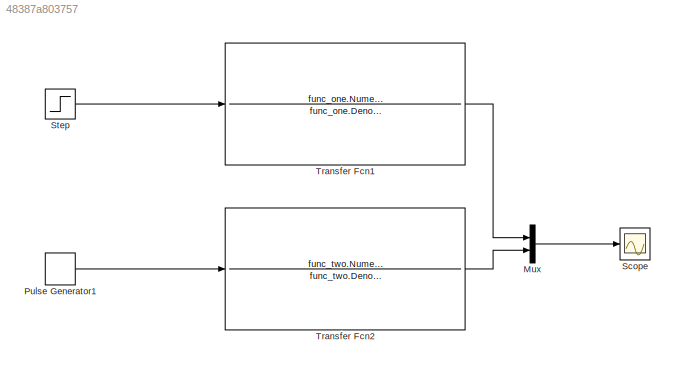
MODEL slx_48387a803757
KIND model
CONFIG AbsTol = auto
CONFIG EnableMultiTasking = off
CONFIG FixedStep = auto
CONFIG MaxStep = auto
CONFIG MinStep = auto
CONFIG RelTol = 1e-3
CONFIG SampleTimeConstraint = Unconstrained
CONFIG Solver = VariableStepAuto
CONFIG SolverName = VariableStepAuto
CONFIG StartTime = 0.0
CONFIG StopTime = 100
BLOCK [Mux] Mux
  DisplayOption = bar
  Inputs = 2
  Ports = [2, 1]
BLOCK [DiscretePulseGenerator] Pulse Generator1
  Amplitude = 0.5
  Period = 20
  Ports = [0, 1]
  PulseWidth = 5
  SampleTime = 0.001
BLOCK [Scope] Scope
  Floating = off
  NumInputPorts = 1
  Ports = [1]
  ScopeSpecificationString = Simulink.scopes.TimeScopeBlockCfg('CurrentConfiguration', extmgr.ConfigurationSet(extmgr.Configuration('Core','General UI',true),extmgr.Configuration('Core','Source UI',true),extmgr.Configuration('Sources','WiredSimulink',true,'DataLogging',true,'DataLoggingSaveFormat','StructureWithTime'),extmgr.Configuration('Visuals','Time Domain',true,'SerializedDisplays',{struct('MinYLimReal','-0.18082','MaxY...<+1468ch>
BLOCK [Step] Step
  SampleTime = 0.001
  Time = 0
BLOCK [TransferFcn] Transfer Fcn1
  Denominator = func_one.Denominator{1,1}
  Numerator = func_one.Numerator{1,1}
BLOCK [TransferFcn] Transfer Fcn2 
  Denominator = func_two.Denominator{1,1}
  Numerator = func_two.Numerator{1,1}
LINE Mux:1 -> Scope:1
LINE Pulse Generator1:1 -> Transfer Fcn2 :1
LINE Step:1 -> Transfer Fcn1:1
LINE Transfer Fcn1:1 -> Mux:1
LINE Transfer Fcn2 :1 -> Mux:2
